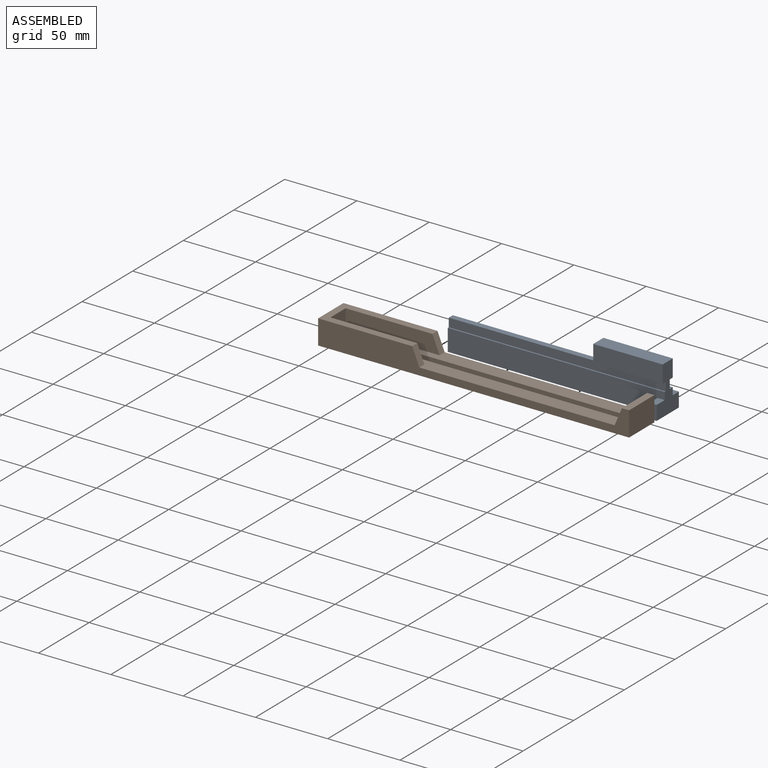
[diagram: assembled view]
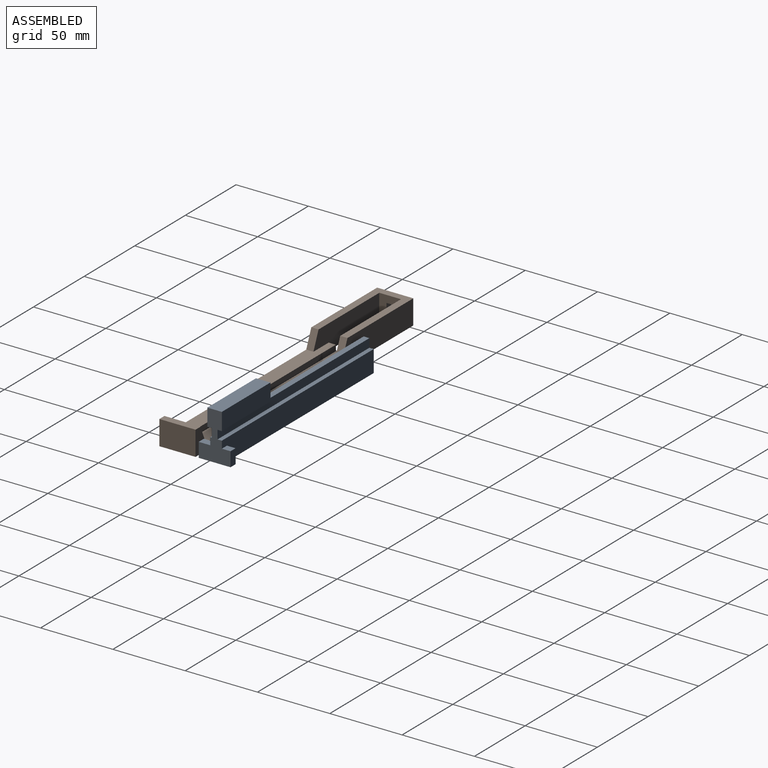
[diagram: assembled view, second angle]
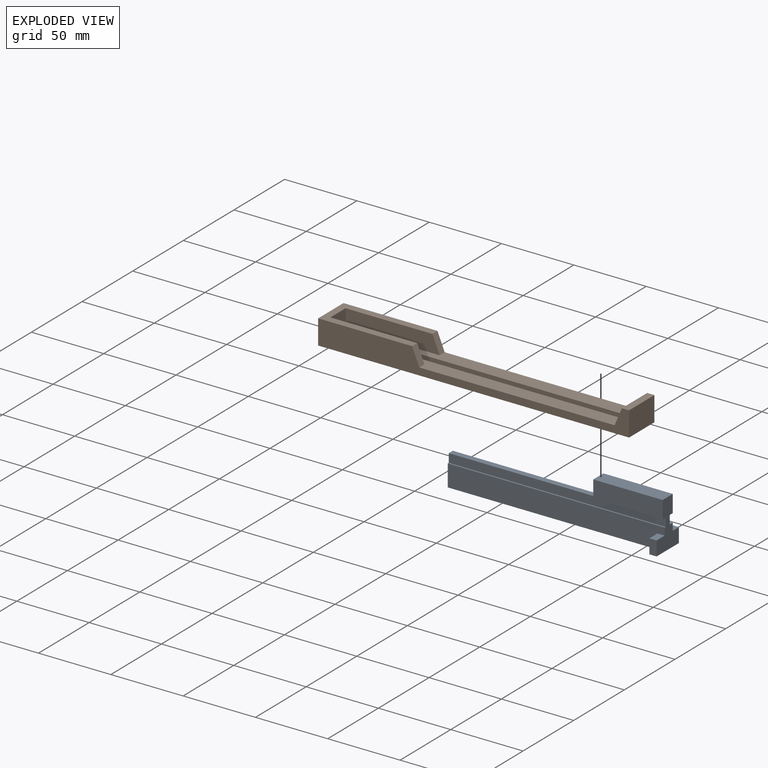
[diagram: exploded view]
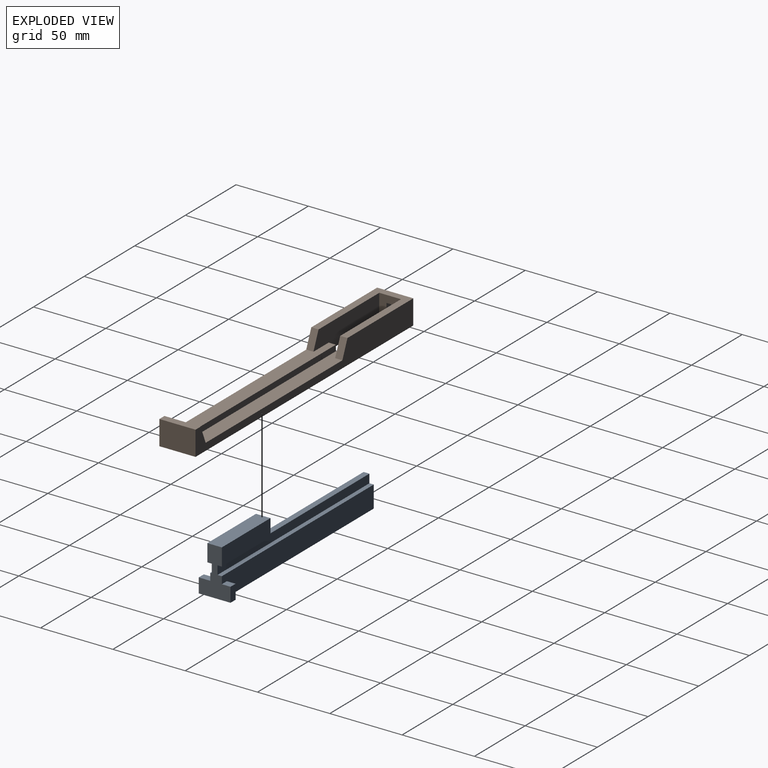
[diagram: exploded view, second angle]
ASSEMBLY  parts=2 mates=2
PART A: 26 faces, bbox 150x22x33 mm
  f0: plane 10x6mm, normal (-1,0,0), area 60mm2, adj f8,f22,f23,f25
  f1: plane 150x15mm, normal (0,-1,0), area 2200mm2, adj f2,f4,f5,f8,f20,f24
  f2: plane 150x1mm, normal (0,0,1), area 150mm2, adj f1,f4,f5,f11
  f3: plane 148.39x10mm, normal (0,1,0), area 1483.9mm2, adj f5,f7,f8,f9
  f4: plane 33x22mm, normal (1,0,0), area 404mm2, adj f1,f2,f8,f10,f11,f12,f14,f16
  f5: plane 21x8mm, normal (-1,0,0), area 124mm2, adj f1,f2,f3,f6,f8,f9,f10,f11
  f6: plane 148.39x10mm, normal (0,-1,0), area 1483.9mm2, adj f5,f7,f8,f9
  f7: plane 10x2mm, normal (-1,0,0), area 20mm2, adj f3,f6,f8,f9
  f8: plane 150x22mm, normal (0,0,-1), area 973.2mm2, adj f0,f1,f3,f4,f5,f6,f7,f20
  f9: plane 148.39x2mm, normal (0,0,-1), area 296.8mm2, adj f3,f5,f6,f7
  f10: plane 150x3mm, normal (0,0,1), area 450mm2, adj f4,f5,f12,f23
  f11: plane 150x6mm, normal (0,-1,0), area 900mm2, adj f2,f4,f5,f13,f19
  f12: plane 150x6mm, normal (0,1,0), area 900mm2, adj f4,f5,f10,f13,f14
  f13: plane 102x4mm, normal (0,0,1), area 408mm2, adj f5,f11,f12,f15
  f14: plane 48x3mm, normal (0,0,-1), area 144mm2, adj f4,f12,f15,f17
  f15: plane 12x10mm, normal (-1,0,0), area 120mm2, adj f13,f14,f16,f17,f18,f19
  f16: plane 48x12mm, normal (0,-1,0), area 576mm2, adj f4,f15,f18,f19
  f17: plane 48x12mm, normal (0,1,0), area 576mm2, adj f4,f14,f15,f18
  f18: plane 48x10mm, normal (0,0,1), area 480mm2, adj f4,f15,f16,f17
  f19: plane 48x3mm, normal (0,0,-1), area 144mm2, adj f4,f11,f15,f16
  f20: plane 10x8mm, normal (-1,0,0), area 80mm2, adj f1,f8,f21,f24
  f21: plane 10x5mm, normal (0,-1,0), area 50mm2, adj f4,f8,f20,f24
  f22: plane 10x5mm, normal (0,1,0), area 50mm2, adj f0,f4,f8,f25
  f23: plane 150x15mm, normal (0,1,0), area 2200mm2, adj f0,f4,f5,f8,f10,f25
  f24: plane 8x5mm, normal (0,0,1), area 40mm2, adj f1,f4,f20,f21
  f25: plane 6x5mm, normal (0,0,1), area 30mm2, adj f0,f4,f22,f23
PART B: 26 faces, bbox 215x25x17 mm
  f0: plane 17x15mm, normal (1,0,0), area 195mm2, adj f5,f13,f14,f15,f23,f24,f25
  f1: plane 25x17mm, normal (-1,0,0), area 365mm2, adj f10,f11,f14,f15,f23,f24,f25
  f2: plane 155x10mm, normal (0,0,1), area 1450mm2, adj f3,f5,f6,f7,f10,f20,f21,f22
  f3: plane 17x15mm, normal (-1,0,0), area 205mm2, adj f2,f4,f7,f8,f14,f16,f19,f21
  f4: plane 155x10mm, normal (0,0,1), area 1450mm2, adj f3,f8,f9,f11,f13,f17,f18,f19
  f5: plane 65x17mm, normal (0,-1,0), area 1000mm2, adj f0,f2,f6,f14,f15,f22
  f6: plane 5x5mm, normal (-1,0,0), area 25mm2, adj f2,f5,f7,f14
  f7: plane 155x5mm, normal (0,-1,0), area 775mm2, adj f2,f3,f6,f14
  f8: plane 155x5mm, normal (0,1,0), area 775mm2, adj f3,f4,f9,f14
  f9: plane 5x5mm, normal (-1,0,0), area 25mm2, adj f4,f8,f13,f14
  f10: plane 215x17mm, normal (0,1,0), area 1975mm2, adj f1,f2,f12,f14,f15,f16,f20,f22
  f11: plane 215x17mm, normal (0,-1,0), area 1975mm2, adj f1,f4,f12,f14,f15,f16,f17,f18
  f12: plane 25x17mm, normal (1,0,0), area 425mm2, adj f10,f11,f14,f16
  f13: plane 65x17mm, normal (0,1,0), area 1000mm2, adj f0,f4,f9,f14,f15,f17
  f14: plane 215x25mm, normal (0,0,-1), area 3825mm2, adj f0,f1,f3,f5,f6,f7,f8,f9
  f15: plane 65x25mm, normal (0,0,1), area 725mm2, adj f0,f1,f5,f10,f11,f13,f17,f22
  f16: plane 25x5mm, normal (0,0,1), area 125mm2, adj f3,f10,f11,f12,f18,f20
  f17: plane 12x5mm, normal (0.92,0,0.38), area 65mm2, adj f4,f11,f13,f15
  f18: plane 12x5mm, normal (-0.92,0,0.38), area 65mm2, adj f4,f11,f16,f19
  f19: plane 12x5mm, normal (0,1,0), area 30mm2, adj f3,f4,f18
  f20: plane 12x5mm, normal (-0.92,0,0.38), area 65mm2, adj f2,f10,f16,f21
  f21: plane 12x5mm, normal (0,-1,0), area 30mm2, adj f2,f3,f20
  f22: plane 12x5mm, normal (0.92,0,0.38), area 65mm2, adj f2,f5,f10,f15
  f23: plane 12x5mm, normal (0,-1,0), area 60mm2, adj f0,f1,f14,f25
  f24: plane 12x5mm, normal (0,1,0), area 60mm2, adj f0,f1,f14,f25
  f25: plane 5x5mm, normal (0,0,-1), area 25mm2, adj f0,f1,f23,f24
PLACE A t=(66.62,-35.02,3.61)mm
PLACE B t=(66.62,-51.19,3.61)mm
MATE planar A.f4 <-> B.f12  axis (1,0,0) through (66.62,-37.92,16.66)mm
MATE planar B.f14 <-> A.f8  axis (0,0,-1) through (-30.06,-63.69,3.61)mm
